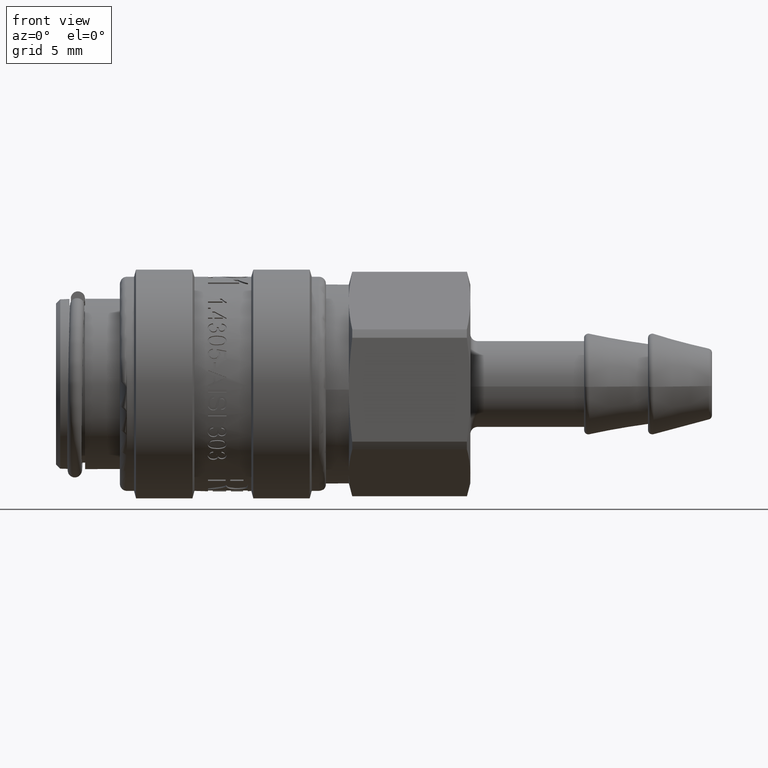
[diagram: clean part render]
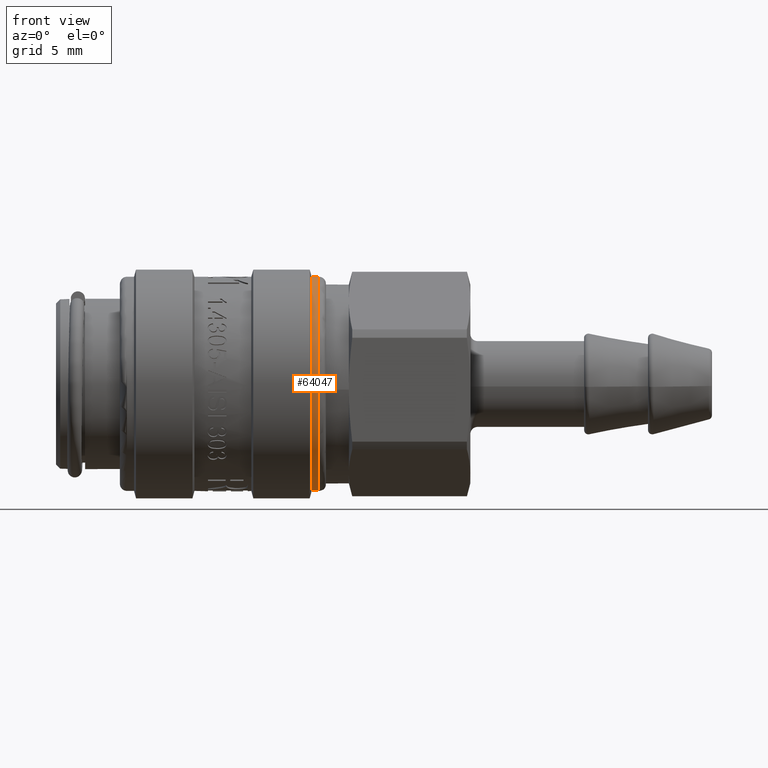
[diagram: same view with one face highlighted and labeled with its STEP entity id]
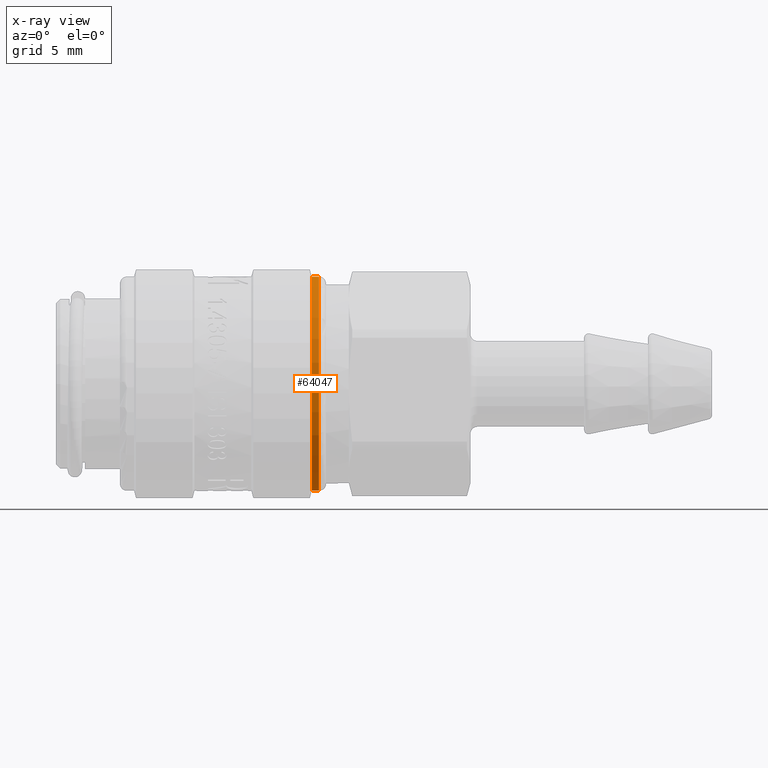
[diagram: x-ray of the same camera — body ghosted, the highlighted face saturated]
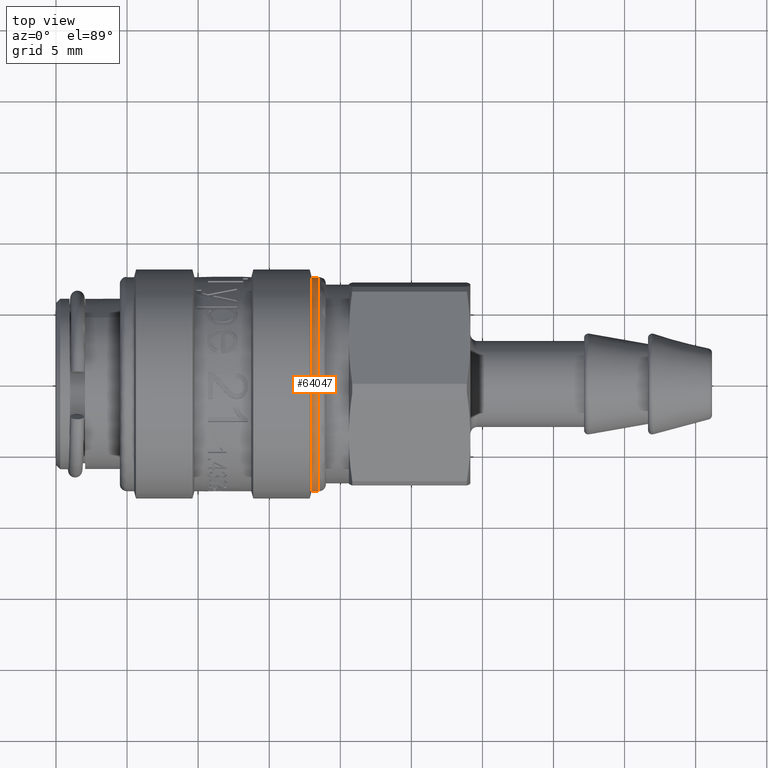
[diagram: same view with one face highlighted and labeled with its STEP entity id]
A machine part, front view. The second image highlights one B-rep face of the part: STEP entity #64047.
The next image is the same camera in x-ray: the body ghosted, the highlighted face saturated — about 0% of this face is hidden behind the body in this view.
A second angle (top view) of the same face is appended — the face is thin or edge-on in the first view.
In plain terms, the highlighted cylindrical surface (bore or boss wall) has radius 7.55 mm, axis along (1, 0, 0).
Its self-contained STEP definition (entity closure, byte-faithful):
#63742=CARTESIAN_POINT('',(17.990000000000002,-1.065827283616066,-7.474390423405753));
#63743=VERTEX_POINT('',#63742);
#63744=CARTESIAN_POINT('',(17.990000000000002,0.0,0.0));
#63745=DIRECTION('',(1.0,0.0,0.0));
#63746=DIRECTION('',(0.0,-0.141169176637889,-0.989985486543808));
#63747=AXIS2_PLACEMENT_3D('',#63744,#63745,#63746);
#63748=CIRCLE('',#63747,7.550000000000002);
#63749=EDGE_CURVE('',#63743,#63743,#63748,.T.);
#64028=CARTESIAN_POINT('',(18.490000000000002,0.0,0.0));
#64029=DIRECTION('',(1.0,0.0,0.0));
#64030=DIRECTION('',(0.0,-0.141169176637889,-0.989985486543808));
#64031=AXIS2_PLACEMENT_3D('',#64028,#64029,#64030);
#64032=CYLINDRICAL_SURFACE('',#64031,7.550000000000003);
#64033=ORIENTED_EDGE('',*,*,#63749,.T.);
#64034=EDGE_LOOP('',(#64033));
#64035=FACE_OUTER_BOUND('',#64034,.T.);
#64036=CARTESIAN_POINT('',(18.490000000000002,-1.065827283616066,-7.474390423405753));
#64037=VERTEX_POINT('',#64036);
#64038=CARTESIAN_POINT('',(18.490000000000002,0.0,0.0));
#64039=DIRECTION('',(1.0,0.0,0.0));
#64040=DIRECTION('',(0.0,0.14116917663789,0.989985486543808));
#64041=AXIS2_PLACEMENT_3D('',#64038,#64039,#64040);
#64042=CIRCLE('',#64041,7.550000000000003);
#64043=EDGE_CURVE('',#64037,#64037,#64042,.T.);
#64044=ORIENTED_EDGE('',*,*,#64043,.F.);
#64045=EDGE_LOOP('',(#64044));
#64046=FACE_BOUND('',#64045,.T.);
#64047=ADVANCED_FACE('',(#64035,#64046),#64032,.T.);